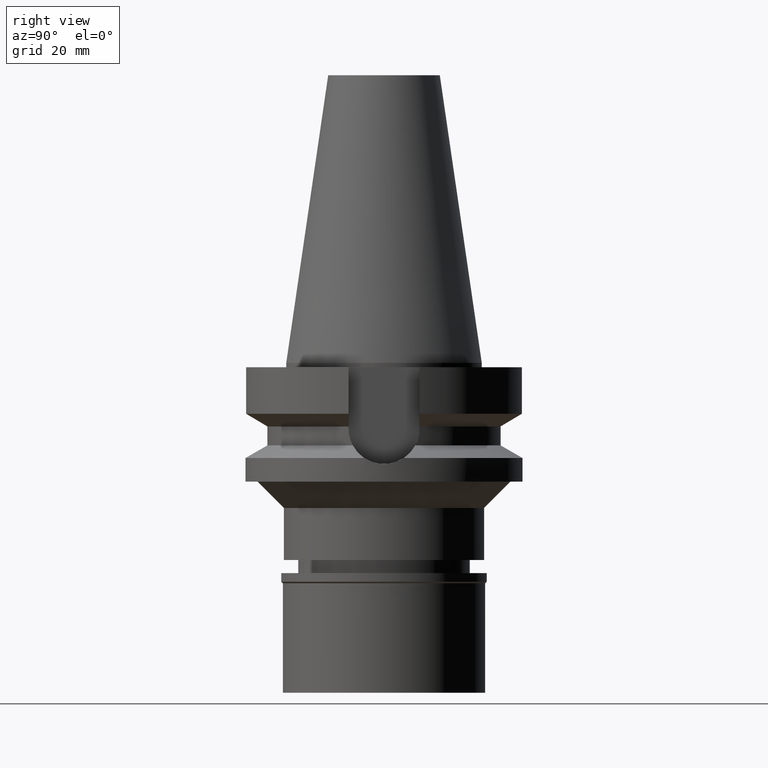
[diagram: clean part render]
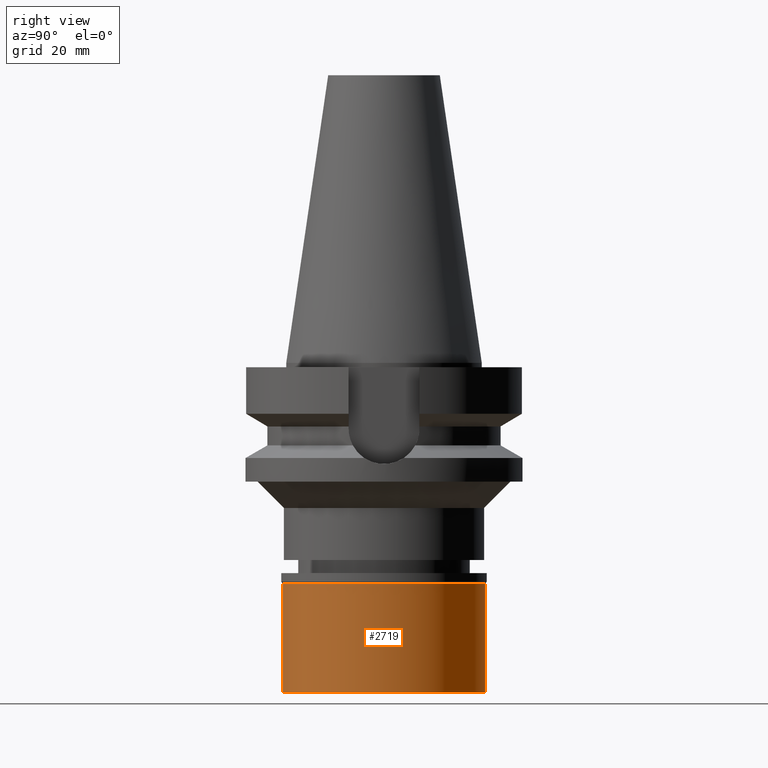
[diagram: same view with one face highlighted and labeled with its STEP entity id]
A machine part, right view. The second image highlights one B-rep face of the part: STEP entity #2719.
In plain terms, the highlighted cylindrical surface (partial cylindrical patch) has radius 23 mm, axis along (0, 0, -1).
Its self-contained STEP definition (entity closure, byte-faithful):
#13 = CARTESIAN_POINT ( 'NONE',  ( 0.0000000000000000000, 23.00000000000000000, -27.19999999999999929 ) ) ;
#56 = CIRCLE ( 'NONE', #1170, 23.00000000000000000 ) ;
#71 = CARTESIAN_POINT ( 'NONE',  ( 0.0000000000000000000, -23.00000000000000000, -2.299999999999999822 ) ) ;
#315 = CYLINDRICAL_SURFACE ( 'NONE', #1509, 23.00000000000000000 ) ;
#540 = LINE ( 'NONE', #71, #1662 ) ;
#549 = DIRECTION ( 'NONE',  ( 0.0000000000000000000, 0.0000000000000000000, 1.000000000000000000 ) ) ;
#663 = DIRECTION ( 'NONE',  ( 0.0000000000000000000, 0.0000000000000000000, -1.000000000000000000 ) ) ;
#717 = DIRECTION ( 'NONE',  ( 0.0000000000000000000, 0.0000000000000000000, -1.000000000000000000 ) ) ;
#944 = ORIENTED_EDGE ( 'NONE', *, *, #1652, .T. ) ;
#978 = EDGE_CURVE ( 'NONE', #1554, #2831, #56, .T. ) ;
#1170 = AXIS2_PLACEMENT_3D ( 'NONE', #2583, #717, #2156 ) ;
#1189 = FACE_OUTER_BOUND ( 'NONE', #2858, .T. ) ;
#1249 = DIRECTION ( 'NONE',  ( 0.0000000000000000000, -1.000000000000000000, 0.0000000000000000000 ) ) ;
#1252 = EDGE_CURVE ( 'NONE', #2360, #2241, #2609, .T. ) ;
#1345 = EDGE_CURVE ( 'NONE', #1554, #2241, #1598, .T. ) ;
#1455 = CARTESIAN_POINT ( 'NONE',  ( 0.0000000000000000000, 0.0000000000000000000, 0.0000000000000000000 ) ) ;
#1509 = AXIS2_PLACEMENT_3D ( 'NONE', #1455, #2865, #1249 ) ;
#1554 = VERTEX_POINT ( 'NONE', #2325 ) ;
#1567 = VECTOR ( 'NONE', #663, 1000.000000000000000 ) ;
#1598 = LINE ( 'NONE', #2263, #1567 ) ;
#1652 = EDGE_CURVE ( 'NONE', #2831, #2360, #540, .T. ) ;
#1662 = VECTOR ( 'NONE', #1717, 1000.000000000000000 ) ;
#1717 = DIRECTION ( 'NONE',  ( 0.0000000000000000000, 0.0000000000000000000, -1.000000000000000000 ) ) ;
#1752 = ORIENTED_EDGE ( 'NONE', *, *, #978, .T. ) ;
#2156 = DIRECTION ( 'NONE',  ( 0.0000000000000000000, 1.000000000000000000, 0.0000000000000000000 ) ) ;
#2157 = AXIS2_PLACEMENT_3D ( 'NONE', #2658, #549, #2674 ) ;
#2211 = CARTESIAN_POINT ( 'NONE',  ( 0.0000000000000000000, -23.00000000000000000, -2.299999999999999822 ) ) ;
#2241 = VERTEX_POINT ( 'NONE', #13 ) ;
#2263 = CARTESIAN_POINT ( 'NONE',  ( 0.0000000000000000000, 23.00000000000000000, -2.299999999999999822 ) ) ;
#2325 = CARTESIAN_POINT ( 'NONE',  ( 0.0000000000000000000, 23.00000000000000000, -2.299999999999999822 ) ) ;
#2333 = ORIENTED_EDGE ( 'NONE', *, *, #1252, .T. ) ;
#2360 = VERTEX_POINT ( 'NONE', #2419 ) ;
#2419 = CARTESIAN_POINT ( 'NONE',  ( 0.0000000000000000000, -23.00000000000000000, -27.19999999999999929 ) ) ;
#2583 = CARTESIAN_POINT ( 'NONE',  ( 0.0000000000000000000, 0.0000000000000000000, -2.299999999999999822 ) ) ;
#2600 = ORIENTED_EDGE ( 'NONE', *, *, #1345, .F. ) ;
#2609 = CIRCLE ( 'NONE', #2157, 23.00000000000000000 ) ;
#2658 = CARTESIAN_POINT ( 'NONE',  ( 0.0000000000000000000, 0.0000000000000000000, -27.19999999999999929 ) ) ;
#2674 = DIRECTION ( 'NONE',  ( 0.0000000000000000000, -1.000000000000000000, 0.0000000000000000000 ) ) ;
#2719 = ADVANCED_FACE ( 'NONE', ( #1189 ), #315, .T. ) ;
#2831 = VERTEX_POINT ( 'NONE', #2211 ) ;
#2858 = EDGE_LOOP ( 'NONE', ( #1752, #944, #2333, #2600 ) ) ;
#2865 = DIRECTION ( 'NONE',  ( 0.0000000000000000000, 0.0000000000000000000, -1.000000000000000000 ) ) ;